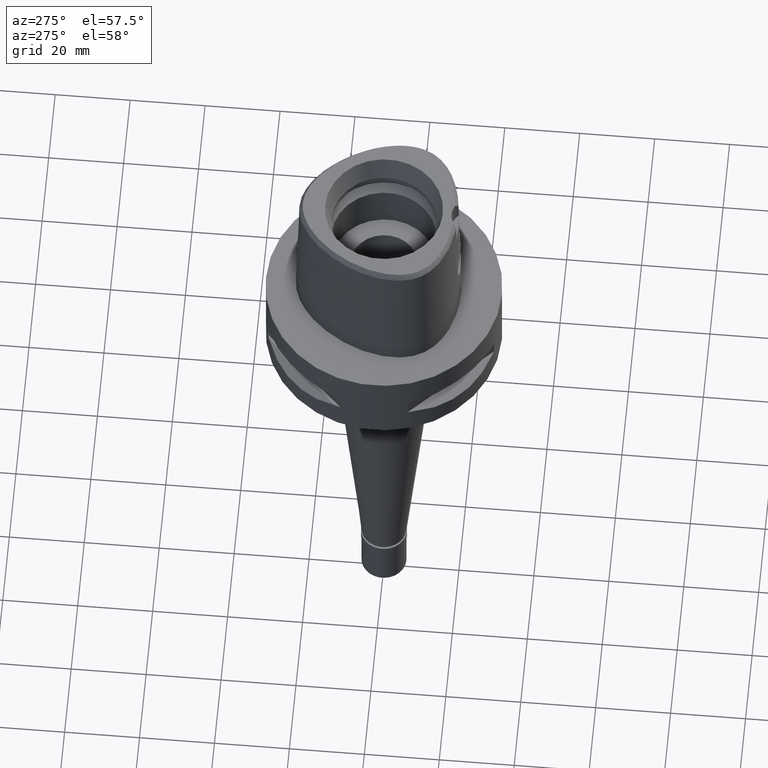
[diagram: clean part render]
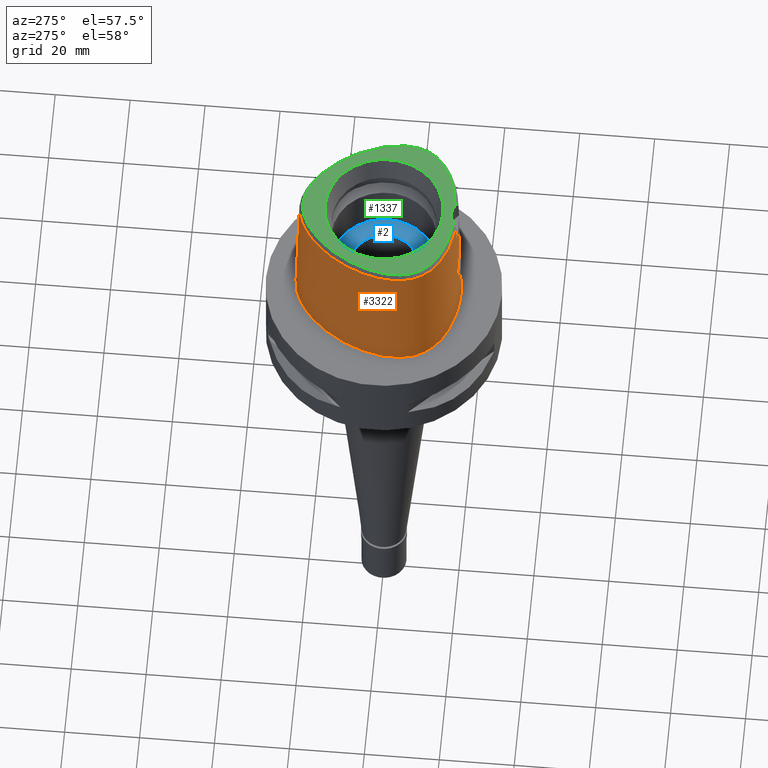
[diagram: same view with three faces highlighted in distinct colors, each labeled with its STEP entity id]
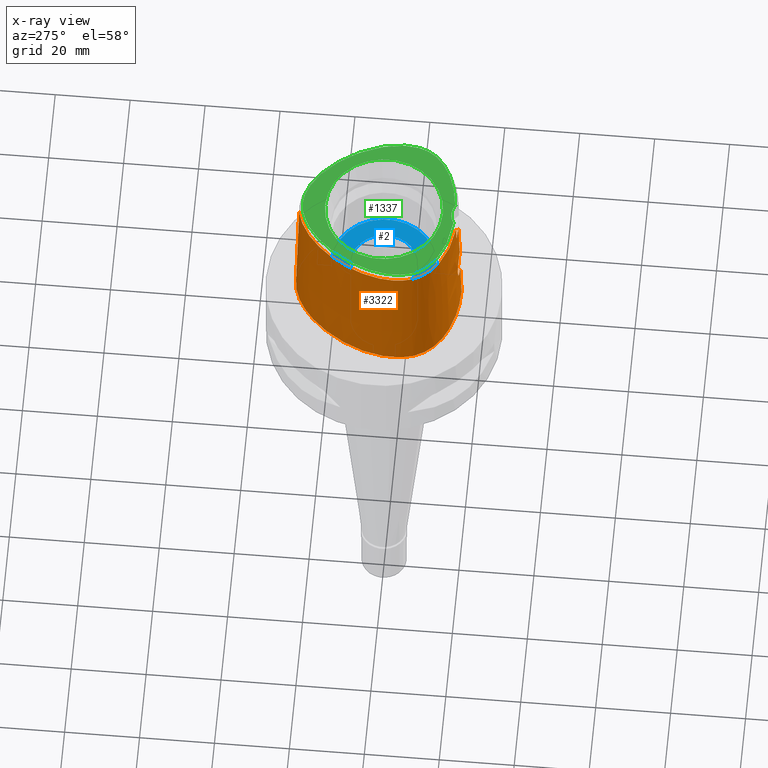
[diagram: x-ray of the same camera — body ghosted, the three highlighted faces saturated]
A machine part, auxiliary view with three faces highlighted in distinct colors.
The next image is the same camera in x-ray (body ghosted, the three faces saturated) — at least one of them is partly hidden behind the body in this view.
Their STEP definitions:

[orange] entity #3322 — the highlighted face is a freeform B-spline surface patch.
#42 = CARTESIAN_POINT ( 'NONE',  ( 0.4441907131123999930, 22.53710806195000060, 37.25231136629000162 ) ) ;
#82 = CARTESIAN_POINT ( 'NONE',  ( -1.559921522266380922, -20.34641501697879917, 11.76246137009818682 ) ) ;
#101 = CARTESIAN_POINT ( 'NONE',  ( -4.987110700638000438, 22.24795288858000220, 11.93047880357999979 ) ) ;
#109 = CARTESIAN_POINT ( 'NONE',  ( -3.388781880868394936, -20.17907268768857421, 13.28211842289943156 ) ) ;
#116 = CARTESIAN_POINT ( 'NONE',  ( -21.32871527669535894, -4.105831244393780999, 36.52186244847997898 ) ) ;
#126 = ORIENTED_EDGE ( 'NONE', *, *, #4096, .T. ) ;
#131 = CARTESIAN_POINT ( 'NONE',  ( -2.904838724130528238, -20.23782704190018933, 12.67778573503325568 ) ) ;
#148 = CARTESIAN_POINT ( 'NONE',  ( -14.52531267748999966, -16.95413756033000041, 11.93047880357999979 ) ) ;
#179 = CARTESIAN_POINT ( 'NONE',  ( -10.91263715786999988, -18.01320822577000058, 37.25231136629000162 ) ) ;
#200 = CARTESIAN_POINT ( 'NONE',  ( -21.13154905645999904, -6.714587102013999775, 37.25231136629000162 ) ) ;
#213 = CARTESIAN_POINT ( 'NONE',  ( -10.15538788052730901, 18.47129535094432384, 36.52186244847997898 ) ) ;
#225 = CARTESIAN_POINT ( 'NONE',  ( -21.31039850805000313, -4.105938495994998938, 37.25231136629000162 ) ) ;
#274 = EDGE_CURVE ( 'NONE', #2057, #2580, #715, .T. ) ;
#291 = CARTESIAN_POINT ( 'NONE',  ( -19.64947365556884762, -12.82525390401577603, 1.516090832520342047E-07 ) ) ;
#319 = CARTESIAN_POINT ( 'NONE',  ( -18.06826688197366337, 10.43171874809906008, 1.516090832520342047E-07 ) ) ;
#334 = CARTESIAN_POINT ( 'NONE',  ( -0.5985508228249999396, 23.20171286081999895, 11.93047880357999979 ) ) ;
#379 = CARTESIAN_POINT ( 'NONE',  ( -3.740129524197139066, -20.04822853724960652, 17.05370687142074360 ) ) ;
#397 = B_SPLINE_CURVE_WITH_KNOTS ( 'NONE', 3,
 ( #4078, #2663, #2205, #3805, #2272, #4881, #1507, #3712, #712, #4527, #1832, #4102, #406, #3780, #1552, #3390, #1904, #4129, #4457, #2995, #1140, #2234, #1064, #3740, #1533, #2644, #735, #3351, #3761, #4477, #4842, #4147, #2977, #1856, #4544, #4863, #2252, #1482, #3415, #1117, #1876, #379, #3047, #3144, #1234, #4638, #4198, #1285, #829, #1209, #3830, #1260, #2345, #3489, #3067, #2769, #3850, #3903, #3877, #1599, #2400, #855, #487, #2002, #2323, #4564, #1649, #1946, #510, #109, #2744, #431, #2025, #2049, #2717, #3536, #131, #4666, #807, #3513, #1626, #3171, #1969, #2369, #4274, #910, #4616, #4593, #1179, #886, #82, #3122, #4302, #2802, #2422 ),
 .UNSPECIFIED., .F., .F.,
 ( 4, 2, 2, 1, 1, 1, 2, 2, 2, 2, 1, 2, 2, 2, 1, 1, 1, 2, 2, 2, 2, 2, 1, 1, 2, 2, 2, 2, 1, 2, 2, 2, 2, 1, 1, 1, 2, 2, 2, 2, 1, 2, 2, 2, 1, 1, 1, 2, 2, 2, 2, 2, 1, 1, 2, 2, 4 ),
 ( 0.0000000000000000000, 0.06249999999999049372, 0.09374999999998573363, 0.1093749999999832495, 0.1171874999999820144, 0.1210937499999814176, 0.1230468749999810985, 0.1249999999999807931, 0.1562499999999729661, 0.1718749999999690525, 0.1796874999999668598, 0.1835937499999657496, 0.1874999999999646394, 0.2187499999999545086, 0.2343749999999494571, 0.2421874999999469036, 0.2460937499999455991, 0.2480468749999449884, 0.2499999999999443501, 0.3124999999999286127, 0.3437499999999203970, 0.3593749999999167333, 0.3671874999999144573, 0.3710937499999137357, 0.3730468749999138467, 0.3749999999999139577, 0.4374999999999172884, 0.4687499999999186207, 0.4843749999999192313, 0.4921874999999191203, 0.4999999999999190647, 0.5624999999999195088, 0.5937499999999198419, 0.6093749999999201750, 0.6171874999999203970, 0.6210937499999205080, 0.6230468749999207301, 0.6249999999999210631, 0.6562499999999255040, 0.6718749999999277245, 0.6796874999999289457, 0.6835937499999295008, 0.6874999999999301670, 0.7187499999999358291, 0.7343749999999387157, 0.7421874999999402700, 0.7460937499999409361, 0.7480468749999412692, 0.7499999999999416023, 0.8124999999999558131, 0.8437499999999626965, 0.8593749999999662492, 0.8671874999999679146, 0.8710937499999688027, 0.8730468749999691358, 0.8749999999999694689, 1.000000000000000000 ),
 .UNSPECIFIED. ) ;
#406 = CARTESIAN_POINT ( 'NONE',  ( -1.656252726911618511, -20.15609978928722867, 19.19765142507207756 ) ) ;
#413 = EDGE_CURVE ( 'NONE', #4728, #2580, #2086, .T. ) ;
#431 = CARTESIAN_POINT ( 'NONE',  ( -3.294464282140111777, -20.19175818983390158, 13.14063372506772254 ) ) ;
#443 = CARTESIAN_POINT ( 'NONE',  ( -7.420053181281000221, 21.05635752723999943, 11.93047880357999979 ) ) ;
#458 = B_SPLINE_CURVE_WITH_KNOTS ( 'NONE', 3,
 ( #1801, #2521, #1434, #3153 ),
 .UNSPECIFIED., .F., .F.,
 ( 4, 4 ),
 ( 0.0000000000000000000, 1.000000000000000000 ),
 .UNSPECIFIED. ) ;
#487 = CARTESIAN_POINT ( 'NONE',  ( -3.698122373996128864, -20.13343971460524529, 13.84482020457166307 ) ) ;
#501 = CARTESIAN_POINT ( 'NONE',  ( -10.34823249250999844, 18.70095512760000034, 24.59139508493999671 ) ) ;
#510 = CARTESIAN_POINT ( 'NONE',  ( -3.408875187839198073, -20.17633333107676563, 13.31312751174689701 ) ) ;
#526 = CARTESIAN_POINT ( 'NONE',  ( -21.99640701095000139, -0.2778990171088999706, -0.7304374777704000232 ) ) ;
#528 = CARTESIAN_POINT ( 'NONE',  ( -8.667931141994000226E-13, -20.38876923348000147, 11.44999999999999929 ) ) ;
#550 = CARTESIAN_POINT ( 'NONE',  ( -11.13012658649000031, -18.61140124550999886, 11.93047880357999979 ) ) ;
#578 = CARTESIAN_POINT ( 'NONE',  ( -20.09084481757999896, -11.59945466311000040, 11.93047880357999979 ) ) ;
#601 = CARTESIAN_POINT ( 'NONE',  ( -1.870070496460999765, -20.39691400875999960, 11.93047880357999979 ) ) ;
#613 = CARTESIAN_POINT ( 'NONE',  ( -2.376843896517139232, 22.39422508474153517, 36.52186244847997898 ) ) ;
#622 = CARTESIAN_POINT ( 'NONE',  ( -20.76670354435999855, 4.663413652274000398, -0.7304374777704000232 ) ) ;
#665 = CARTESIAN_POINT ( 'NONE',  ( -16.39211280191772602, -14.95758113319345384, 36.52186244847997898 ) ) ;
#670 = CARTESIAN_POINT ( 'NONE',  ( -14.67337964231609782, -17.21410155919817697, 1.516090832520342047E-07 ) ) ;
#712 = CARTESIAN_POINT ( 'NONE',  ( -1.492522727678615713, -20.16161937968068329, 19.26502569009137034 ) ) ;
#715 = B_SPLINE_CURVE_WITH_KNOTS ( 'NONE', 3,
 ( #1413, #2502, #1393, #2909 ),
 .UNSPECIFIED., .F., .F.,
 ( 4, 4 ),
 ( 0.0000000000000000000, 1.000000000000000000 ),
 .UNSPECIFIED. ) ;
#733 = CARTESIAN_POINT ( 'NONE',  ( -2.373090359931000037, 22.37624367419000393, 37.25231136629000162 ) ) ;
#735 = CARTESIAN_POINT ( 'NONE',  ( -2.823299992925739410, -20.10104229143708565, 18.40378355437400160 ) ) ;
#807 = CARTESIAN_POINT ( 'NONE',  ( -2.875757950342948011, -20.24102512592659764, 12.64823125461505171 ) ) ;
#820 = CARTESIAN_POINT ( 'NONE',  ( -4.750826273471000505, 21.65775819037000005, 37.25231136629000162 ) ) ;
#829 = CARTESIAN_POINT ( 'NONE',  ( -4.048193638326901933, -20.04945813671652033, 15.62509932609983032 ) ) ;
#855 = CARTESIAN_POINT ( 'NONE',  ( -3.744859968340089384, -20.12555785049467261, 13.95773689200745338 ) ) ;
#886 = CARTESIAN_POINT ( 'NONE',  ( -1.572984596545893954, -20.34569619827465203, 11.76794029727986590 ) ) ;
#901 = CARTESIAN_POINT ( 'NONE',  ( -21.68301110411999844, -0.3332743872212999836, 11.93047880357999979 ) ) ;
#910 = CARTESIAN_POINT ( 'NONE',  ( -1.758544761756498431, -20.33485355119083238, 11.85123508316437224 ) ) ;
#915 = VERTEX_POINT ( 'NONE', #4698 ) ;
#923 = CARTESIAN_POINT ( 'NONE',  ( -21.76083720955000089, -6.805026057181000176, 11.93047880357999979 ) ) ;
#954 = CARTESIAN_POINT ( 'NONE',  ( -6.232237614063000031, -19.68961196273999903, 24.59139508493999671 ) ) ;
#982 = CARTESIAN_POINT ( 'NONE',  ( -16.77374388608999922, -15.44292480215000118, 11.93047880357999979 ) ) ;
#998 = CARTESIAN_POINT ( 'NONE',  ( -10.74572890813996118, 19.17433593458577334, 1.516090832520342047E-07 ) ) ;
#1004 = CARTESIAN_POINT ( 'NONE',  ( -14.17879765569999861, 15.44741201222999827, 11.93047880357999979 ) ) ;
#1009 = B_SPLINE_CURVE_WITH_KNOTS ( 'NONE', 3,
 ( #3642, #3889, #2477, #1044, #3325, #665, #4817, #2012, #3616, #3693, #2550, #4719, #116, #3522, #2908, #3990, #2383, #213, #2929, #4406, #613, #1731, #4059 ),
 .UNSPECIFIED., .F., .F.,
 ( 4, 1, 1, 1, 1, 1, 1, 1, 1, 1, 1, 1, 1, 1, 1, 1, 1, 1, 1, 1, 4 ),
 ( 0.0000000000000000000, 0.03580973941714544334, 0.1234633994702087068, 0.1672902294965299408, 0.2111170595230616454, 0.2549438895495931834, 0.2768573045627013007, 0.2987707195759145562, 0.3206841345892329498, 0.3425975496024461497, 0.3864243796288726052, 0.4302512096552991161, 0.4740780396818307652, 0.5617316997346836205, 0.6493853597876417805, 0.7370390198404946913, 0.8246926798934527403, 0.8685195099198792512, 0.9123463399463582757, 0.9561731699728056588, 1.000000000000000000 ),
 .UNSPECIFIED. ) ;
#1044 = CARTESIAN_POINT ( 'NONE',  ( -10.91891098964648243, -18.03046406390211942, 36.52186244847997898 ) ) ;
#1047 = EDGE_CURVE ( 'NONE', #1725, #2770, #1705, .T. ) ;
#1064 = CARTESIAN_POINT ( 'NONE',  ( -2.467128207642502513, -20.12044499745017134, 18.71456023907540711 ) ) ;
#1068 = CARTESIAN_POINT ( 'NONE',  ( -18.56841064866222268, -14.16937988020231920, 1.516090832520342047E-07 ) ) ;
#1085 = CARTESIAN_POINT ( 'NONE',  ( -7.580410837599999674, 21.33037925853999894, -0.7304374777704000232 ) ) ;
#1117 = CARTESIAN_POINT ( 'NONE',  ( -3.732557508991586115, -20.04859144260170467, 17.07180291400313266 ) ) ;
#1140 = CARTESIAN_POINT ( 'NONE',  ( -2.236225399030620231, -20.13170464962382411, 18.87669531695366132 ) ) ;
#1179 = CARTESIAN_POINT ( 'NONE',  ( -1.592612062488384606, -20.34460894490693406, 11.77623291200199596 ) ) ;
#1199 = CARTESIAN_POINT ( 'NONE',  ( -0.5657070435999999036, 22.56734929399999956, 37.25231136629000162 ) ) ;
#1209 = CARTESIAN_POINT ( 'NONE',  ( -4.049663826248691478, -20.05088590019592942, 15.56119206773615282 ) ) ;
#1226 = CARTESIAN_POINT ( 'NONE',  ( -7.099337868642000338, 20.50831406465000128, 37.25231136629000162 ) ) ;
#1234 = CARTESIAN_POINT ( 'NONE',  ( -4.001055636223517453, -20.04208398454983708, 16.14154222849866827 ) ) ;
#1260 = CARTESIAN_POINT ( 'NONE',  ( -4.049848995936303098, -20.05861656951286776, 15.25314035239193444 ) ) ;
#1274 = CARTESIAN_POINT ( 'NONE',  ( -18.08416037879000271, 10.44089486959999924, -0.7304374777704000232 ) ) ;
#1285 = CARTESIAN_POINT ( 'NONE',  ( -4.044848056825707694, -20.04744994058535923, 15.72117637686656266 ) ) ;
#1300 = CARTESIAN_POINT ( 'NONE',  ( -18.89485299809999930, -12.27684389312000057, 37.25231136629000162 ) ) ;
#1318 = CARTESIAN_POINT ( 'NONE',  ( 4.293582668174999870E-11, 23.47499999999000053, 9.107529545341999115E-14 ) ) ;
#1326 = CARTESIAN_POINT ( 'NONE',  ( -19.54161197124000182, -11.28235493022000036, 37.25231136629000162 ) ) ;
#1336 = CARTESIAN_POINT ( 'NONE',  ( -8.667931141994000226E-13, -20.38876923348000147, 11.44999999999999929 ) ) ;
#1355 = CARTESIAN_POINT ( 'NONE',  ( -6.175998633194000220, -19.37631812177000157, 37.25231136629000162 ) ) ;
#1379 = CARTESIAN_POINT ( 'NONE',  ( -11.23887130079000052, -18.91049775537999977, -0.7304374777704000232 ) ) ;
#1393 = CARTESIAN_POINT ( 'NONE',  ( -2.503154198992862955, -19.81241979316056145, 31.80000012753026084 ) ) ;
#1395 = CARTESIAN_POINT ( 'NONE',  ( -21.55524825644420872, -8.996025389541506101, 1.516090832520342047E-07 ) ) ;
#1399 = CARTESIAN_POINT ( 'NONE',  ( 0.6657744371640000880, -19.73734283165999770, 37.25231136629000162 ) ) ;
#1413 = CARTESIAN_POINT ( 'NONE',  ( 2.041043315709000034E-08, -19.88004246002000031, 31.80000004972000127 ) ) ;
#1431 = VECTOR ( 'NONE', #3697, 999.9999999999998863 ) ;
#1434 = CARTESIAN_POINT ( 'NONE',  ( 6.841163893683022649E-09, -20.08420636276290594, 23.63333344114114354 ) ) ;
#1440 = CARTESIAN_POINT ( 'NONE',  ( -2.564517726178084267, 23.29328124627052787, 1.516090832520342047E-07 ) ) ;
#1481 = CARTESIAN_POINT ( 'NONE',  ( 0.6850314208139999250, 22.83959065495000118, 24.59139508493999671 ) ) ;
#1482 = CARTESIAN_POINT ( 'NONE',  ( -3.704467467887744725, -20.04996865237259129, 17.13733399075324471 ) ) ;
#1507 = CARTESIAN_POINT ( 'NONE',  ( -1.320565687264797061, -20.16697761691573731, 19.32976498246365082 ) ) ;
#1533 = CARTESIAN_POINT ( 'NONE',  ( -2.696415149887689822, -20.10825975497922258, 18.52316981036163668 ) ) ;
#1534 = CARTESIAN_POINT ( 'NONE',  ( -3.736722311398999796, -19.67781602443999844, 31.80000000000000071 ) ) ;
#1552 = CARTESIAN_POINT ( 'NONE',  ( -1.944872162910971092, -20.14473830020706657, 19.05307826099978286 ) ) ;
#1589 = CARTESIAN_POINT ( 'NONE',  ( -7.259695524960999791, 20.78233579595000080, 24.59139508493999671 ) ) ;
#1599 = CARTESIAN_POINT ( 'NONE',  ( -3.755562140675836158, -20.12374194796079152, 13.98397501488260986 ) ) ;
#1617 = CARTESIAN_POINT ( 'NONE',  ( -10.75753573489000026, 19.18839675363999930, -0.7304374777704000232 ) ) ;
#1626 = CARTESIAN_POINT ( 'NONE',  ( -2.647727988180406111, -20.26593689667708276, 12.42012271615854679 ) ) ;
#1639 = CARTESIAN_POINT ( 'NONE',  ( -21.26836750797999898, -8.910752273017001457, 11.93047880357999979 ) ) ;
#1649 = CARTESIAN_POINT ( 'NONE',  ( -3.466483550462866159, -20.16833646132894486, 13.40542637816833071 ) ) ;
#1668 = CARTESIAN_POINT ( 'NONE',  ( -14.68244496869000137, -17.23001772590000158, -0.7304374777704000232 ) ) ;
#1694 = CARTESIAN_POINT ( 'NONE',  ( -21.94536987623000002, -4.102220498717000119, 11.93047880357999979 ) ) ;
#1705 = LINE ( 'NONE', #1336, #2138 ) ;
#1719 = CARTESIAN_POINT ( 'NONE',  ( -19.40779776082000296, -12.64961932687999990, 11.93047880357999979 ) ) ;
#1725 = VERTEX_POINT ( 'NONE', #528 ) ;
#1731 = CARTESIAN_POINT ( 'NONE',  ( -0.7901461696975209392, 22.56201478746218214, 36.52186244847997898 ) ) ;
#1734 = ORIENTED_EDGE ( 'NONE', *, *, #3910, .T. ) ;
#1747 = CARTESIAN_POINT ( 'NONE',  ( -17.53318593686000071, 10.12278939025999946, 24.59139508493999671 ) ) ;
#1801 = CARTESIAN_POINT ( 'NONE',  ( 2.041043315709000034E-08, -19.88004246002000031, 31.80000004972000127 ) ) ;
#1802 = CARTESIAN_POINT ( 'NONE',  ( -3.637738201363999835, -19.56971413236999879, 36.52186244848000030 ) ) ;
#1804 = CARTESIAN_POINT ( 'NONE',  ( -22.24453907474380898, -4.100468750021740938, 1.516090832520342047E-07 ) ) ;
#1832 = CARTESIAN_POINT ( 'NONE',  ( -1.533377486144819501, -20.16026360294686270, 19.24851053761152642 ) ) ;
#1835 = ORIENTED_EDGE ( 'NONE', *, *, #1047, .F. ) ;
#1838 = CARTESIAN_POINT ( 'NONE',  ( -14.40795638667350254, 15.64093749753958029, 1.516090832520342047E-07 ) ) ;
#1856 = CARTESIAN_POINT ( 'NONE',  ( -3.538328569005032787, -20.05892019842396934, 17.47427695038973283 ) ) ;
#1861 = CARTESIAN_POINT ( 'NONE',  ( -1.759307681796000049E-11, 22.56201468012000078, 36.52186680743999858 ) ) ;
#1876 = CARTESIAN_POINT ( 'NONE',  ( -3.738021026995801410, -20.04832921641905585, 17.05876513950481765 ) ) ;
#1904 = CARTESIAN_POINT ( 'NONE',  ( -2.095753548395244525, -20.13818364214451506, 18.96577014707053266 ) ) ;
#1937 = CARTESIAN_POINT ( 'NONE',  ( -2.438150641533999963, 22.68791657577000009, 24.59139508493999671 ) ) ;
#1946 = CARTESIAN_POINT ( 'NONE',  ( -3.438474045104767285, -20.17226853617655991, 13.35950353182825801 ) ) ;
#1969 = CARTESIAN_POINT ( 'NONE',  ( -2.086814383482011870, -20.31269213283806607, 12.02647857459893643 ) ) ;
#1993 = CARTESIAN_POINT ( 'NONE',  ( -2.503210923137999533, 22.99958947736000070, 11.93047880357999979 ) ) ;
#2002 = CARTESIAN_POINT ( 'NONE',  ( -3.646271025734550086, -20.14180172669103186, 13.73229968882544050 ) ) ;
#2009 = EDGE_CURVE ( 'NONE', #4728, #915, #1009, .T. ) ;
#2012 = CARTESIAN_POINT ( 'NONE',  ( -18.90964971338107148, -12.28759719904689085, 36.52186244847997898 ) ) ;
#2017 = CARTESIAN_POINT ( 'NONE',  ( 0.7234356448024998887, 23.47140592164999973, -0.7304374777704000232 ) ) ;
#2025 = CARTESIAN_POINT ( 'NONE',  ( -3.215358272889149216, -20.20174660046221149, 13.03391498473980015 ) ) ;
#2040 = CARTESIAN_POINT ( 'NONE',  ( -20.65947774839000317, -8.729764431562999860, 37.25231136629000162 ) ) ;
#2049 = CARTESIAN_POINT ( 'NONE',  ( -3.089131642922218646, -20.21685897407314769, 12.88004451868384415 ) ) ;
#2057 = VERTEX_POINT ( 'NONE', #3280 ) ;
#2066 = EDGE_CURVE ( 'NONE', #2057, #3517, #458, .T. ) ;
#2070 = CARTESIAN_POINT ( 'NONE',  ( -22.26285556032000201, -4.100361500077999821, -0.7304374777704000232 ) ) ;
#2086 = B_SPLINE_CURVE_WITH_KNOTS ( 'NONE', 3,
 ( #1802, #2206, #3373, #1534 ),
 .UNSPECIFIED., .F., .F.,
 ( 4, 4 ),
 ( 0.0000000000000000000, 1.000000000000000000 ),
 .UNSPECIFIED. ) ;
#2098 = CARTESIAN_POINT ( 'NONE',  ( -13.69241993480999930, 15.03666403818000141, 37.25231136629000162 ) ) ;
#2120 = CARTESIAN_POINT ( 'NONE',  ( -1.853278700958999936, -20.08023942343999835, 24.59139508493999671 ) ) ;
#2138 = VECTOR ( 'NONE', #3202, 1000.000000000000114 ) ;
#2146 = CARTESIAN_POINT ( 'NONE',  ( -18.58171406219999966, -14.18198046202999940, -0.7304374777704000232 ) ) ;
#2205 = CARTESIAN_POINT ( 'NONE',  ( -0.5036866637177189743, -20.18406862059044471, 19.52728785670061384 ) ) ;
#2206 = CARTESIAN_POINT ( 'NONE',  ( -3.671249123513567802, -19.60525173594972514, 34.94790829898666829 ) ) ;
#2231 = EDGE_CURVE ( 'NONE', #3517, #1725, #397, .T. ) ;
#2234 = CARTESIAN_POINT ( 'NONE',  ( -2.360389010897319562, -20.12578017861218171, 18.79373387523179417 ) ) ;
#2251 = CARTESIAN_POINT ( 'NONE',  ( -5.105252914221000360, 22.54305023769000016, -0.7304374777704000232 ) ) ;
#2252 = CARTESIAN_POINT ( 'NONE',  ( -3.686560471762271085, -20.05088322548380830, 17.17709135336051318 ) ) ;
#2272 = CARTESIAN_POINT ( 'NONE',  ( -1.025211814374638264, -20.17465818941732536, 19.42048404905608905 ) ) ;
#2323 = CARTESIAN_POINT ( 'NONE',  ( -3.553766165189729875, -20.15576042538050316, 13.55638603653859242 ) ) ;
#2345 = CARTESIAN_POINT ( 'NONE',  ( -4.027530768687938689, -20.06783249595402552, 14.99855479662145896 ) ) ;
#2369 = CARTESIAN_POINT ( 'NONE',  ( -1.975954942318344232, -20.32065689222465465, 11.96260358362793674 ) ) ;
#2383 = CARTESIAN_POINT ( 'NONE',  ( -13.70645028111287189, 15.04851272300174614, 36.52186244847997898 ) ) ;
#2400 = CARTESIAN_POINT ( 'NONE',  ( -3.748882549355226690, -20.12487725615831025, 13.96753193210504129 ) ) ;
#2414 = CARTESIAN_POINT ( 'NONE',  ( -21.36961519729999992, -0.3886497573336999412, 24.59139508493999671 ) ) ;
#2422 = CARTESIAN_POINT ( 'NONE',  ( -8.667931141994000226E-13, -20.38876923348000147, 11.44999999999999929 ) ) ;
#2438 = CARTESIAN_POINT ( 'NONE',  ( -16.97022730797000278, -15.69280482715999803, -0.7304374777704000232 ) ) ;
#2442 = EDGE_LOOP ( 'NONE', ( #1835, #2486, #4891, #3654, #4408, #2762, #126, #1734 ) ) ;
#2464 = CARTESIAN_POINT ( 'NONE',  ( -20.65879056728000052, -10.48283623212999949, 11.93047880357999979 ) ) ;
#2477 = CARTESIAN_POINT ( 'NONE',  ( -7.300578999875400932, -19.07170748891758549, 36.52186244847997898 ) ) ;
#2486 = ORIENTED_EDGE ( 'NONE', *, *, #2231, .F. ) ;
#2488 = CARTESIAN_POINT ( 'NONE',  ( -20.36913788052000029, -10.35391849632000039, 24.59139508493999671 ) ) ;
#2502 = CARTESIAN_POINT ( 'NONE',  ( -1.251533273949767100, -19.88005341379726332, 31.80000012753026084 ) ) ;
#2509 = CARTESIAN_POINT ( 'NONE',  ( -20.94844325404000074, -10.61175396793999859, -0.7304374777704000232 ) ) ;
#2521 = CARTESIAN_POINT ( 'NONE',  ( 6.821213392575076802E-09, -19.98212988583494010, 27.71666688228195241 ) ) ;
#2528 = CARTESIAN_POINT ( 'NONE',  ( -11.23259756597050618, -18.89324218392132337, 1.516090832520342047E-07 ) ) ;
#2550 = CARTESIAN_POINT ( 'NONE',  ( -20.67704215115839617, -8.734985316449570547, 36.52186244847997898 ) ) ;
#2580 = VERTEX_POINT ( 'NONE', #4313 ) ;
#2601 = CARTESIAN_POINT ( 'NONE',  ( -20.74942740520685547, 4.657187498707317630, 1.516090832520342047E-07 ) ) ;
#2608 = CARTESIAN_POINT ( 'NONE',  ( 0.4479792515600000136, -20.05810169771000062, 24.59139508493999671 ) ) ;
#2622 = CARTESIAN_POINT ( 'NONE',  ( 0.6658293088197000387, 22.52368302160000013, 37.25231136629000162 ) ) ;
#2644 = CARTESIAN_POINT ( 'NONE',  ( -2.781497320423301112, -20.10345565782014887, 18.44409576489579905 ) ) ;
#2651 = B_SPLINE_SURFACE_WITH_KNOTS ( 'NONE', 3, 3, ( 
 ( #2017, #4214, #1481, #2622 ),
 ( #3841, #3739, #4128, #42 ),
 ( #3894, #334, #4609, #1199 ),
 ( #3447, #1993, #1937, #733 ),
 ( #2251, #101, #2709, #820 ),
 ( #1085, #443, #1589, #1226 ),
 ( #1617, #2734, #501, #4653 ),
 ( #4292, #1004, #2870, #2098 ),
 ( #1274, #3190, #1747, #4020 ),
 ( #622, #2791, #2818, #2897 ),
 ( #526, #901, #2414, #3604 ),
 ( #2070, #1694, #4393, #225 ),
 ( #4316, #923, #4683, #200 ),
 ( #3916, #1639, #3627, #2040 ),
 ( #2509, #2464, #2488, #4761 ),
 ( #3974, #578, #3657, #1326 ),
 ( #3269, #1719, #4370, #1300 ),
 ( #2146, #3159, #3241, #4708 ),
 ( #2438, #982, #4730, #3549 ),
 ( #1668, #148, #4340, #3939 ),
 ( #1379, #550, #3581, #179 ),
 ( #3215, #2840, #954, #1355 ),
 ( #3998, #601, #2120, #3312 ),
 ( #4782, #4068, #2608, #4467 ),
 ( #2917, #4089, #3291, #1399 ) ),
 .UNSPECIFIED., .F., .F., .F.,
 ( 4, 1, 1, 1, 1, 1, 1, 1, 1, 1, 1, 1, 1, 1, 1, 1, 1, 1, 1, 1, 1, 1, 4 ),
 ( 4, 4 ),
 ( -0.01173777939044999899, 0.0000000000000000000, 0.04166666666733000179, 0.08333333333395000209, 0.1250000000005999923, 0.1666666666672000086, 0.2500000000004999889, 0.3333333333337000215, 0.4166666666670000296, 0.5000000000001999512, 0.5416666666668999985, 0.5833333333335000148, 0.6250000000001000311, 0.6458333333333999837, 0.6666666666667999674, 0.6875000000001000311, 0.7083333333333000637, 0.7500000000000000000, 0.7916666666667000474, 0.8333333333332000326, 0.9166666666666000163, 1.000000000000000000, 1.008985696609000060 ),
 ( 6.707173028780000584E-09, 0.9999996579341000613 ),
 .UNSPECIFIED. ) ;
#2663 = CARTESIAN_POINT ( 'NONE',  ( -0.2473412322741261882, -20.18628283969000492, 19.55000000000000426 ) ) ;
#2709 = CARTESIAN_POINT ( 'NONE',  ( -4.868968487054000427, 21.95285553947999801, 24.59139508493999671 ) ) ;
#2717 = CARTESIAN_POINT ( 'NONE',  ( -3.024127618931548245, -20.22444760029573985, 12.80466032897816042 ) ) ;
#2734 = CARTESIAN_POINT ( 'NONE',  ( -10.55288411370000112, 18.94467594061999804, 11.93047880357999979 ) ) ;
#2744 = CARTESIAN_POINT ( 'NONE',  ( -3.377353639917552997, -20.18061854612841444, 13.26476903757174952 ) ) ;
#2758 = FACE_OUTER_BOUND ( 'NONE', #2442, .T. ) ;
#2762 = ORIENTED_EDGE ( 'NONE', *, *, #2009, .T. ) ;
#2769 = CARTESIAN_POINT ( 'NONE',  ( -3.862607746706451906, -20.10460055501078003, 14.28038032247243905 ) ) ;
#2770 = VERTEX_POINT ( 'NONE', #3571 ) ;
#2791 = CARTESIAN_POINT ( 'NONE',  ( -20.46725052786000276, 4.555493679518000327, 11.93047880357999979 ) ) ;
#2802 = CARTESIAN_POINT ( 'NONE',  ( -0.5047993657332932038, -20.38876923348000503, 11.45000000000000284 ) ) ;
#2816 = VERTEX_POINT ( 'NONE', #1318 ) ;
#2818 = CARTESIAN_POINT ( 'NONE',  ( -20.16779751134999898, 4.447573706760999279, 24.59139508493999671 ) ) ;
#2840 = CARTESIAN_POINT ( 'NONE',  ( -6.288476594931999841, -20.00290580371000360, 11.93047880357999979 ) ) ;
#2870 = CARTESIAN_POINT ( 'NONE',  ( -13.93560879526000029, 15.24203802521000028, 24.59139508493999671 ) ) ;
#2897 = CARTESIAN_POINT ( 'NONE',  ( -19.86834449483999876, 4.339653734004000896, 37.25231136629000162 ) ) ;
#2908 = CARTESIAN_POINT ( 'NONE',  ( -19.88562090098501756, 4.345879983791825829, 36.52186244847997898 ) ) ;
#2909 = CARTESIAN_POINT ( 'NONE',  ( -3.736722311398999796, -19.67781602443999844, 31.80000000000000071 ) ) ;
#2917 = CARTESIAN_POINT ( 'NONE',  ( 0.6840430852616000701, -20.68668154483000166, -0.7304374777704000232 ) ) ;
#2929 = CARTESIAN_POINT ( 'NONE',  ( -7.108589416785739523, 20.52412325828468553, 36.52186244847997898 ) ) ;
#2958 = B_SPLINE_CURVE_WITH_KNOTS ( 'NONE', 3,
 ( #2963, #4064, #1440, #4462, #4847, #998, #1838, #319, #2601, #3649, #1804, #3331, #1395, #3356, #4800, #291, #1068, #3745, #670, #2528, #4015, #2999, #4822 ),
 .UNSPECIFIED., .F., .F.,
 ( 4, 1, 1, 1, 1, 1, 1, 1, 1, 1, 1, 1, 1, 1, 1, 1, 1, 1, 1, 1, 4 ),
 ( 0.0000000000000000000, 0.04166666666733000179, 0.08333333333395000209, 0.1250000000005999923, 0.1666666666672000086, 0.2500000000004999889, 0.3333333333337000215, 0.4166666666670000296, 0.5000000000001999512, 0.5416666666668999985, 0.5833333333335000148, 0.6250000000001000311, 0.6458333333333999837, 0.6666666666667999674, 0.6875000000001000311, 0.7083333333333000637, 0.7500000000000000000, 0.7916666666667000474, 0.8333333333332000326, 0.9166666666666000163, 1.000000000000000000 ),
 .UNSPECIFIED. ) ;
#2963 = CARTESIAN_POINT ( 'NONE',  ( 4.293582668174999870E-11, 23.47499999999000053, 9.107529545341999115E-14 ) ) ;
#2977 = CARTESIAN_POINT ( 'NONE',  ( -3.474550157059038469, -20.06258684786126523, 17.58509941784945241 ) ) ;
#2995 = CARTESIAN_POINT ( 'NONE',  ( -2.218923952794646937, -20.13252298611812208, 18.88809933007006592 ) ) ;
#2999 = CARTESIAN_POINT ( 'NONE',  ( -2.113823672838555545, -20.67499999620940088, 1.516090832520342047E-07 ) ) ;
#3047 = CARTESIAN_POINT ( 'NONE',  ( -3.848403410416709303, -20.04310851184391851, 16.79149714036300267 ) ) ;
#3055 = CARTESIAN_POINT ( 'NONE',  ( 0.0000000000000000000, -20.18628283968999781, 19.55000000000000071 ) ) ;
#3067 = CARTESIAN_POINT ( 'NONE',  ( -3.921269265891369482, -20.09311890564247705, 14.47775228281387072 ) ) ;
#3122 = CARTESIAN_POINT ( 'NONE',  ( -1.554881956813682908, -20.34669101429740934, 11.76035872672039773 ) ) ;
#3144 = CARTESIAN_POINT ( 'NONE',  ( -3.925407708650914707, -20.04099055260014950, 16.53138977175270341 ) ) ;
#3153 = CARTESIAN_POINT ( 'NONE',  ( 0.0000000000000000000, -20.18628283968999781, 19.55000000000000071 ) ) ;
#3159 = CARTESIAN_POINT ( 'NONE',  ( -18.35112160873999798, -13.96357042235000101, 11.93047880357999979 ) ) ;
#3171 = CARTESIAN_POINT ( 'NONE',  ( -2.421503357513920651, -20.28648737493561782, 12.24279215510286178 ) ) ;
#3190 = CARTESIAN_POINT ( 'NONE',  ( -17.80867315781999949, 10.28184212993000024, 11.93047880357999979 ) ) ;
#3202 = DIRECTION ( 'NONE',  ( -5.349584865116839678E-13, -0.02499051295389925070, -0.9996876883618708298 ) ) ;
#3215 = CARTESIAN_POINT ( 'NONE',  ( -6.344715575800000451, -20.31619964468000106, -0.7304374777704000232 ) ) ;
#3241 = CARTESIAN_POINT ( 'NONE',  ( -18.12052915529000074, -13.74516038266999907, 24.59139508493999671 ) ) ;
#3269 = CARTESIAN_POINT ( 'NONE',  ( -19.66427014217999769, -12.83600704375999868, -0.7304374777704000232 ) ) ;
#3280 = CARTESIAN_POINT ( 'NONE',  ( 2.041043315709000034E-08, -19.88004246002000031, 31.80000004972000127 ) ) ;
#3291 = CARTESIAN_POINT ( 'NONE',  ( 0.6718639865299000924, -20.05378906938000227, 24.59139508493999671 ) ) ;
#3312 = CARTESIAN_POINT ( 'NONE',  ( -1.836486905457000107, -19.76356483813000153, 37.25231136629000162 ) ) ;
#3322 = ADVANCED_FACE ( 'NONE', ( #2758 ), #2651, .T. ) ;
#3325 = CARTESIAN_POINT ( 'NONE',  ( -14.22011356156252759, -16.41829364186565599, 36.52186244847997898 ) ) ;
#3331 = CARTESIAN_POINT ( 'NONE',  ( -22.05732873945438044, -6.847636718208110373, 1.516090832520342047E-07 ) ) ;
#3351 = CARTESIAN_POINT ( 'NONE',  ( -2.841055161940949869, -20.10000556631502278, 18.38634273632050764 ) ) ;
#3356 = CARTESIAN_POINT ( 'NONE',  ( -20.93173251864306650, -10.60431640471491299, 1.516090832520342047E-07 ) ) ;
#3373 = CARTESIAN_POINT ( 'NONE',  ( -3.704239276368590961, -19.64128040965313460, 33.37395414949332917 ) ) ;
#3390 = CARTESIAN_POINT ( 'NONE',  ( -2.004675599368612282, -20.14220382833430278, 19.01976680094607630 ) ) ;
#3415 = CARTESIAN_POINT ( 'NONE',  ( -3.724287987555729984, -20.04899117660383112, 17.09139312268648325 ) ) ;
#3447 = CARTESIAN_POINT ( 'NONE',  ( -2.568271204742000435, 23.31126237894000042, -0.7304374777704000232 ) ) ;
#3489 = CARTESIAN_POINT ( 'NONE',  ( -3.952964639651607381, -20.08622609015318616, 14.60890045233773904 ) ) ;
#3513 = CARTESIAN_POINT ( 'NONE',  ( -2.870809693609941871, -20.24156730632680379, 12.64324605246962285 ) ) ;
#3517 = VERTEX_POINT ( 'NONE', #3055 ) ;
#3522 = CARTESIAN_POINT ( 'NONE',  ( -21.07430010673186871, -0.4408303445194081682, 36.52186244847997898 ) ) ;
#3536 = CARTESIAN_POINT ( 'NONE',  ( -2.945118222698877020, -20.23335776653538076, 12.71958560101227675 ) ) ;
#3549 = CARTESIAN_POINT ( 'NONE',  ( -16.38077704234999743, -14.94316475211999951, 37.25231136629000162 ) ) ;
#3571 = CARTESIAN_POINT ( 'NONE',  ( -6.993981376961000509E-12, -20.67499999999999716, 9.396187531743999603E-14 ) ) ;
#3581 = CARTESIAN_POINT ( 'NONE',  ( -11.02138187217999921, -18.31230473563999794, 24.59139508493999671 ) ) ;
#3604 = CARTESIAN_POINT ( 'NONE',  ( -21.05621929047000052, -0.4440251274461000097, 37.25231136629000162 ) ) ;
#3616 = CARTESIAN_POINT ( 'NONE',  ( -19.55745547455838818, -11.29150218116089377, 36.52186244847997898 ) ) ;
#3627 = CARTESIAN_POINT ( 'NONE',  ( -20.96392262818999797, -8.820258352290000659, 24.59139508493999671 ) ) ;
#3642 = CARTESIAN_POINT ( 'NONE',  ( -3.637738201363999835, -19.56971413236999879, 36.52186244848000030 ) ) ;
#3649 = CARTESIAN_POINT ( 'NONE',  ( -21.97832647411087947, -0.2810937506630972194, 1.516090832520342047E-07 ) ) ;
#3654 = ORIENTED_EDGE ( 'NONE', *, *, #274, .T. ) ;
#3657 = CARTESIAN_POINT ( 'NONE',  ( -19.81622839441000039, -11.44090479666999904, 24.59139508493999671 ) ) ;
#3693 = CARTESIAN_POINT ( 'NONE',  ( -20.09619618741029612, -10.23243843868713832, 36.52186244847997898 ) ) ;
#3697 = DIRECTION ( 'NONE',  ( 1.656815626040964494E-12, 0.02499051290962944413, -0.9996876883629776112 ) ) ;
#3712 = CARTESIAN_POINT ( 'NONE',  ( -1.435263460282424575, -20.16346600381253040, 19.28743623777679161 ) ) ;
#3739 = CARTESIAN_POINT ( 'NONE',  ( 0.4696382080600999820, 23.16972813871999648, 11.93047880357999979 ) ) ;
#3740 = CARTESIAN_POINT ( 'NONE',  ( -2.621021505576066168, -20.11233874864635851, 18.58822781675918989 ) ) ;
#3745 = CARTESIAN_POINT ( 'NONE',  ( -16.95889172358566199, -15.67838866887873550, 1.516090832520342047E-07 ) ) ;
#3761 = CARTESIAN_POINT ( 'NONE',  ( -2.852856104014803496, -20.09931387729061214, 18.37467926462882417 ) ) ;
#3780 = CARTESIAN_POINT ( 'NONE',  ( -1.768917262151371128, -20.15190475906414491, 19.14568281054234333 ) ) ;
#3805 = CARTESIAN_POINT ( 'NONE',  ( -0.8941136475697671893, -20.17742596329177118, 19.45229334933698340 ) ) ;
#3830 = CARTESIAN_POINT ( 'NONE',  ( -4.050018014422872348, -20.05167593066963860, 15.52805627100037533 ) ) ;
#3841 = CARTESIAN_POINT ( 'NONE',  ( 0.4823619555338999887, 23.48603817709999930, -0.7304374777704000232 ) ) ;
#3850 = CARTESIAN_POINT ( 'NONE',  ( -3.830499027171943460, -20.11062698622851741, 14.18153512548177808 ) ) ;
#3867 = CARTESIAN_POINT ( 'NONE',  ( -3.637738201363999835, -19.56971413236999879, 36.52186244848000030 ) ) ;
#3877 = CARTESIAN_POINT ( 'NONE',  ( -3.765489374954457791, -20.12204791086868738, 14.00864527313871832 ) ) ;
#3889 = CARTESIAN_POINT ( 'NONE',  ( -4.467522189393990928, -19.48130287050517850, 36.52186244847997898 ) ) ;
#3894 = CARTESIAN_POINT ( 'NONE',  ( -0.6149727124373999265, 23.51889464423000220, -0.7304374777704000232 ) ) ;
#3903 = CARTESIAN_POINT ( 'NONE',  ( -3.788010122585403927, -20.11815763408299063, 14.06624340822980557 ) ) ;
#3910 = EDGE_CURVE ( 'NONE', #2816, #2770, #2958, .T. ) ;
#3916 = CARTESIAN_POINT ( 'NONE',  ( -21.57281238776999999, -9.001246193743998703, -0.7304374777704000232 ) ) ;
#3939 = CARTESIAN_POINT ( 'NONE',  ( -14.21104809508999800, -16.40237722918999808, 37.25231136629000162 ) ) ;
#3974 = CARTESIAN_POINT ( 'NONE',  ( -20.36546124075000108, -11.75800452954999997, -0.7304374777704000232 ) ) ;
#3990 = CARTESIAN_POINT ( 'NONE',  ( -17.27359245832981216, 9.972912913898998255, 36.52186244847997898 ) ) ;
#3998 = CARTESIAN_POINT ( 'NONE',  ( -1.886862291963000038, -20.71358859406999997, -0.7304374777704000232 ) ) ;
#4015 = CARTESIAN_POINT ( 'NONE',  ( -6.341471018537943038, -20.29812499625711197, 1.516090832520342047E-07 ) ) ;
#4020 = CARTESIAN_POINT ( 'NONE',  ( -17.25769871589000104, 9.963736650587000199, 37.25231136629000162 ) ) ;
#4059 = CARTESIAN_POINT ( 'NONE',  ( -1.759307681796000049E-11, 22.56201468012000078, 36.52186680743999858 ) ) ;
#4064 = CARTESIAN_POINT ( 'NONE',  ( -0.8548392420360610977, 23.47499999621386735, 1.516090832520342047E-07 ) ) ;
#4068 = CARTESIAN_POINT ( 'NONE',  ( 0.4520368092537000448, -20.37458468872999617, 11.93047880357999979 ) ) ;
#4078 = CARTESIAN_POINT ( 'NONE',  ( 0.0000000000000000000, -20.18628283968999781, 19.55000000000000071 ) ) ;
#4089 = CARTESIAN_POINT ( 'NONE',  ( 0.6779535358957000657, -20.37023530710000330, 11.93047880357999979 ) ) ;
#4096 = EDGE_CURVE ( 'NONE', #915, #2816, #4866, .T. ) ;
#4102 = CARTESIAN_POINT ( 'NONE',  ( -1.543048130370305415, -20.15993798682082883, 19.24453660914027253 ) ) ;
#4128 = CARTESIAN_POINT ( 'NONE',  ( 0.4569144605861999997, 22.85341810032999987, 24.59139508493999671 ) ) ;
#4129 = CARTESIAN_POINT ( 'NONE',  ( -2.141634863645063724, -20.13611892945446158, 18.93776449057540390 ) ) ;
#4147 = CARTESIAN_POINT ( 'NONE',  ( -3.258446753580863664, -20.07522384658303594, 17.91983021284940847 ) ) ;
#4198 = CARTESIAN_POINT ( 'NONE',  ( -4.038031914724459881, -20.04584209171813924, 15.81781984748030112 ) ) ;
#4214 = CARTESIAN_POINT ( 'NONE',  ( 0.7042335328083000334, 23.15549828829999868, 11.93047880357999979 ) ) ;
#4274 = CARTESIAN_POINT ( 'NONE',  ( -1.812541018810720050, -20.33144879143320338, 11.87771303037885140 ) ) ;
#4292 = CARTESIAN_POINT ( 'NONE',  ( -14.42198651615000138, 15.65278599925000158, -0.7304374777704000232 ) ) ;
#4302 = CARTESIAN_POINT ( 'NONE',  ( -1.035503054985373428, -20.37488775911049288, 11.54570873334493619 ) ) ;
#4313 = CARTESIAN_POINT ( 'NONE',  ( -3.736722311398999796, -19.67781602443999844, 31.80000000000000071 ) ) ;
#4316 = CARTESIAN_POINT ( 'NONE',  ( -22.07548128610000049, -6.850245534764000332, -0.7304374777704000232 ) ) ;
#4340 = CARTESIAN_POINT ( 'NONE',  ( -14.36818038628999972, -16.67825739475999924, 24.59139508493999671 ) ) ;
#4370 = CARTESIAN_POINT ( 'NONE',  ( -19.15132537945999758, -12.46323160999999935, 24.59139508493999671 ) ) ;
#4393 = CARTESIAN_POINT ( 'NONE',  ( -21.62788419214000157, -4.104079497356000417, 24.59139508493999671 ) ) ;
#4406 = CARTESIAN_POINT ( 'NONE',  ( -4.757642277158389277, 21.67478330407550402, 36.52186244847997898 ) ) ;
#4408 = ORIENTED_EDGE ( 'NONE', *, *, #413, .F. ) ;
#4457 = CARTESIAN_POINT ( 'NONE',  ( -2.187955111035806421, -20.13397228737170153, 18.90818030784749126 ) ) ;
#4462 = CARTESIAN_POINT ( 'NONE',  ( -5.098437015868814370, 22.52602538709230373, 1.516090832520342047E-07 ) ) ;
#4467 = CARTESIAN_POINT ( 'NONE',  ( 0.4439216938662000067, -19.74161870669000152, 37.25231136629000162 ) ) ;
#4477 = CARTESIAN_POINT ( 'NONE',  ( -2.857836109595106144, -20.09902107152586836, 18.36973246308379970 ) ) ;
#4527 = CARTESIAN_POINT ( 'NONE',  ( -1.517038990522738606, -20.16080850842840277, 19.25515252244622388 ) ) ;
#4544 = CARTESIAN_POINT ( 'NONE',  ( -3.623054736479527804, -20.05423874947299367, 17.31100359227766816 ) ) ;
#4564 = CARTESIAN_POINT ( 'NONE',  ( -3.520475119310990664, -20.16064927170379306, 13.49656734929198088 ) ) ;
#4593 = CARTESIAN_POINT ( 'NONE',  ( -1.638635025880067264, -20.34200884320178915, 11.79610711467187478 ) ) ;
#4609 = CARTESIAN_POINT ( 'NONE',  ( -0.5821289332125000326, 22.88453107740999926, 24.59139508493999671 ) ) ;
#4616 = CARTESIAN_POINT ( 'NONE',  ( -1.678454493306187345, -20.33967188085944855, 11.81405957885125524 ) ) ;
#4638 = CARTESIAN_POINT ( 'NONE',  ( -4.019649019921880395, -20.04316019033561602, 16.01163126935694336 ) ) ;
#4653 = CARTESIAN_POINT ( 'NONE',  ( -10.14358087131000019, 18.45723431458999997, 37.25231136629000162 ) ) ;
#4666 = CARTESIAN_POINT ( 'NONE',  ( -2.887412005236639434, -20.23974548682332397, 12.66003157092715981 ) ) ;
#4683 = CARTESIAN_POINT ( 'NONE',  ( -21.44619313299999774, -6.759806579596999931, 24.59139508493999671 ) ) ;
#4698 = CARTESIAN_POINT ( 'NONE',  ( -1.759307681796000049E-11, 22.56201468012000078, 36.52186680743999858 ) ) ;
#4708 = CARTESIAN_POINT ( 'NONE',  ( -17.88993670183000262, -13.52675034299000068, 37.25231136629000162 ) ) ;
#4719 = CARTESIAN_POINT ( 'NONE',  ( -21.14970188364065606, -6.717195958887423934, 36.52186244847997898 ) ) ;
#4728 = VERTEX_POINT ( 'NONE', #3867 ) ;
#4730 = CARTESIAN_POINT ( 'NONE',  ( -16.57726046422000010, -15.19304477712999990, 24.59139508493999671 ) ) ;
#4761 = CARTESIAN_POINT ( 'NONE',  ( -20.07948519376000007, -10.22500076052000040, 37.25231136629000162 ) ) ;
#4782 = CARTESIAN_POINT ( 'NONE',  ( 0.4560943669473999651, -20.69106767974999883, -0.7304374777704000232 ) ) ;
#4800 = CARTESIAN_POINT ( 'NONE',  ( -20.34961798227869778, -11.74885741997219490, 1.516090832520342047E-07 ) ) ;
#4817 = CARTESIAN_POINT ( 'NONE',  ( -17.90324032096323847, -13.53935111955133763, 36.52186244847997898 ) ) ;
#4822 = CARTESIAN_POINT ( 'NONE',  ( -6.993981376961000509E-12, -20.67499999999999716, 9.396187531743999603E-14 ) ) ;
#4842 = CARTESIAN_POINT ( 'NONE',  ( -3.081149392574033197, -20.08583124627742222, 18.14629112890805729 ) ) ;
#4847 = CARTESIAN_POINT ( 'NONE',  ( -7.571159432430608405, 21.31457030922217299, 1.516090832520342047E-07 ) ) ;
#4863 = CARTESIAN_POINT ( 'NONE',  ( -3.649474620158099647, -20.05281468735682182, 17.25706831817334574 ) ) ;
#4866 = LINE ( 'NONE', #1861, #1431 ) ;
#4881 = CARTESIAN_POINT ( 'NONE',  ( -1.222079501487369324, -20.16967619644332288, 19.36182732690801700 ) ) ;
#4891 = ORIENTED_EDGE ( 'NONE', *, *, #2066, .F. ) ;

[blue] entity #2 — the highlighted planar face has unit normal (0, 0, -1).
#2 = ADVANCED_FACE ( 'NONE', ( #3856, #514 ), #61, .F. ) ;
#61 = PLANE ( 'NONE',  #662 ) ;
#89 = DIRECTION ( 'NONE',  ( 0.0000000000000000000, 0.0000000000000000000, -1.000000000000000000 ) ) ;
#149 = AXIS2_PLACEMENT_3D ( 'NONE', #941, #2783, #3130 ) ;
#455 = EDGE_LOOP ( 'NONE', ( #3569, #1535 ) ) ;
#514 = FACE_BOUND ( 'NONE', #3906, .T. ) ;
#559 = AXIS2_PLACEMENT_3D ( 'NONE', #3191, #3085, #1171 ) ;
#662 = AXIS2_PLACEMENT_3D ( 'NONE', #1930, #89, #1187 ) ;
#783 = EDGE_CURVE ( 'NONE', #2297, #927, #2054, .T. ) ;
#821 = CARTESIAN_POINT ( 'NONE',  ( 0.0000000000000000000, -14.00000000000000000, 11.00000000000000000 ) ) ;
#927 = VERTEX_POINT ( 'NONE', #968 ) ;
#941 = CARTESIAN_POINT ( 'NONE',  ( 0.0000000000000000000, 0.0000000000000000000, 11.00000000000000000 ) ) ;
#968 = CARTESIAN_POINT ( 'NONE',  ( 0.0000000000000000000, 9.000000000000000000, 11.00000000000000000 ) ) ;
#1146 = CARTESIAN_POINT ( 'NONE',  ( 0.0000000000000000000, 14.00000000000000000, 11.00000000000000000 ) ) ;
#1171 = DIRECTION ( 'NONE',  ( 0.0000000000000000000, -1.000000000000000000, 0.0000000000000000000 ) ) ;
#1187 = DIRECTION ( 'NONE',  ( 0.0000000000000000000, -1.000000000000000000, 0.0000000000000000000 ) ) ;
#1511 = CIRCLE ( 'NONE', #559, 14.00000000000000000 ) ;
#1535 = ORIENTED_EDGE ( 'NONE', *, *, #3434, .F. ) ;
#1926 = DIRECTION ( 'NONE',  ( 0.0000000000000000000, -1.000000000000000000, 0.0000000000000000000 ) ) ;
#1930 = CARTESIAN_POINT ( 'NONE',  ( 0.0000000000000000000, 0.0000000000000000000, 11.00000000000000000 ) ) ;
#1974 = CIRCLE ( 'NONE', #3866, 14.00000000000000000 ) ;
#2054 = CIRCLE ( 'NONE', #3864, 9.000000000000000000 ) ;
#2297 = VERTEX_POINT ( 'NONE', #2661 ) ;
#2535 = DIRECTION ( 'NONE',  ( 0.0000000000000000000, 1.000000000000000000, 0.0000000000000000000 ) ) ;
#2561 = CARTESIAN_POINT ( 'NONE',  ( 0.0000000000000000000, 0.0000000000000000000, 11.00000000000000000 ) ) ;
#2647 = VERTEX_POINT ( 'NONE', #1146 ) ;
#2661 = CARTESIAN_POINT ( 'NONE',  ( 0.0000000000000000000, -9.000000000000000000, 11.00000000000000000 ) ) ;
#2713 = ORIENTED_EDGE ( 'NONE', *, *, #2947, .F. ) ;
#2783 = DIRECTION ( 'NONE',  ( 0.0000000000000000000, 0.0000000000000000000, 1.000000000000000000 ) ) ;
#2947 = EDGE_CURVE ( 'NONE', #927, #2297, #3473, .T. ) ;
#3007 = DIRECTION ( 'NONE',  ( 0.0000000000000000000, 0.0000000000000000000, -1.000000000000000000 ) ) ;
#3085 = DIRECTION ( 'NONE',  ( 0.0000000000000000000, 0.0000000000000000000, -1.000000000000000000 ) ) ;
#3130 = DIRECTION ( 'NONE',  ( 0.0000000000000000000, 1.000000000000000000, 0.0000000000000000000 ) ) ;
#3191 = CARTESIAN_POINT ( 'NONE',  ( 0.0000000000000000000, 0.0000000000000000000, 11.00000000000000000 ) ) ;
#3434 = EDGE_CURVE ( 'NONE', #2647, #4580, #1974, .T. ) ;
#3473 = CIRCLE ( 'NONE', #149, 9.000000000000000000 ) ;
#3569 = ORIENTED_EDGE ( 'NONE', *, *, #4608, .F. ) ;
#3856 = FACE_OUTER_BOUND ( 'NONE', #455, .T. ) ;
#3864 = AXIS2_PLACEMENT_3D ( 'NONE', #4618, #4223, #1926 ) ;
#3866 = AXIS2_PLACEMENT_3D ( 'NONE', #2561, #3007, #2535 ) ;
#3906 = EDGE_LOOP ( 'NONE', ( #4259, #2713 ) ) ;
#4223 = DIRECTION ( 'NONE',  ( 0.0000000000000000000, 0.0000000000000000000, 1.000000000000000000 ) ) ;
#4259 = ORIENTED_EDGE ( 'NONE', *, *, #783, .F. ) ;
#4580 = VERTEX_POINT ( 'NONE', #821 ) ;
#4608 = EDGE_CURVE ( 'NONE', #4580, #2647, #1511, .T. ) ;
#4618 = CARTESIAN_POINT ( 'NONE',  ( 0.0000000000000000000, 0.0000000000000000000, 11.00000000000000000 ) ) ;

[green] entity #1337 — the highlighted planar face has unit normal (0, 0, 1).
#1 = CARTESIAN_POINT ( 'NONE',  ( -10.48962422759726465, 16.86631853279105187, 38.00000000000291323 ) ) ;
#21 = PLANE ( 'NONE',  #4738 ) ;
#41 = DIRECTION ( 'NONE',  ( 0.0000000000000000000, 0.0000000000000000000, 1.000000000000000000 ) ) ;
#112 = CARTESIAN_POINT ( 'NONE',  ( 18.24247239569972479, 5.672548708073199997, 38.00000000000012079 ) ) ;
#134 = CARTESIAN_POINT ( 'NONE',  ( 7.655962789343819352, 19.09402979100171649, 37.99999999999973710 ) ) ;
#187 = CARTESIAN_POINT ( 'NONE',  ( -18.79649882724643106, 4.256255933891953447, 37.99999999999410250 ) ) ;
#192 = CARTESIAN_POINT ( 'NONE',  ( 9.524842839488176338, 17.70516372194752108, 37.99999999999900524 ) ) ;
#211 = CARTESIAN_POINT ( 'NONE',  ( 2.845098933833312138, -18.76733062685856623, 37.99999999999663913 ) ) ;
#234 = CARTESIAN_POINT ( 'NONE',  ( -17.60426951087297809, 7.098774535281852316, 37.99999999999238298 ) ) ;
#259 = CARTESIAN_POINT ( 'NONE',  ( -15.71788912669369331, -14.29843101566147467, 37.99999999999599254 ) ) ;
#264 = CARTESIAN_POINT ( 'NONE',  ( 17.45306278053484661, -12.68156296993645071, 37.99999999999704414 ) ) ;
#364 = DIRECTION ( 'NONE',  ( 0.0000000000000000000, -1.000000000000000000, 0.0000000000000000000 ) ) ;
#399 = CARTESIAN_POINT ( 'NONE',  ( -8.578220530113812359, 18.44656747109059225, 38.00000000000532197 ) ) ;
#452 = CARTESIAN_POINT ( 'NONE',  ( 0.0000000000000000000, -23.00000000000000000, 38.00000000000000000 ) ) ;
#513 = CARTESIAN_POINT ( 'NONE',  ( 15.24661770199304023, 11.25762885478260422, 37.99999999999239009 ) ) ;
#530 = VERTEX_POINT ( 'NONE', #4130 ) ;
#536 = CARTESIAN_POINT ( 'NONE',  ( 20.36412151361096079, -5.276385427453875288, 37.99999999999598543 ) ) ;
#560 = CARTESIAN_POINT ( 'NONE',  ( -19.64434054693264642, 1.520253387636229192, 37.99999999999611333 ) ) ;
#607 = CARTESIAN_POINT ( 'NONE',  ( -13.33457781969909917, -15.85148397417931321, 37.99999999999912603 ) ) ;
#629 = CARTESIAN_POINT ( 'NONE',  ( -12.37132652997622806, -16.34104299088516754, 37.99999999999472067 ) ) ;
#634 = CIRCLE ( 'NONE', #1341, 15.71487483155999776 ) ;
#658 = CARTESIAN_POINT ( 'NONE',  ( -2.682279906006999948, -18.78035848609999903, 38.00000000000000000 ) ) ;
#664 = CARTESIAN_POINT ( 'NONE',  ( 16.93855157777579734, -13.22377441789079278, 37.99999999999174349 ) ) ;
#684 = CARTESIAN_POINT ( 'NONE',  ( 15.00628712263210929, -14.82385870794805349, 37.99999999999180034 ) ) ;
#719 = EDGE_LOOP ( 'NONE', ( #2096, #3558 ) ) ;
#741 = CARTESIAN_POINT ( 'NONE',  ( 0.0000000000000000000, 0.0000000000000000000, 38.00000000000000000 ) ) ;
#834 = CARTESIAN_POINT ( 'NONE',  ( 0.2185816947241200903, 21.68728795389687747, 38.00000000000019185 ) ) ;
#936 = CARTESIAN_POINT ( 'NONE',  ( 18.79595068776025713, 4.257753965102887506, 37.99999999999953104 ) ) ;
#964 = CARTESIAN_POINT ( 'NONE',  ( -18.99520880203987616, -10.46968343926279665, 38.00000000000301981 ) ) ;
#994 = CARTESIAN_POINT ( 'NONE',  ( 7.606839420237555771, -18.00827588386222899, 37.99999999999744915 ) ) ;
#1040 = AXIS2_PLACEMENT_3D ( 'NONE', #452, #3143, #4273 ) ;
#1042 = CARTESIAN_POINT ( 'NONE',  ( 2.682287482605000051, -18.78036330228999873, 38.00000000000000000 ) ) ;
#1058 = CARTESIAN_POINT ( 'NONE',  ( -20.15090095364721279, -7.024227649787570193, 38.00000000000298428 ) ) ;
#1063 = CARTESIAN_POINT ( 'NONE',  ( 15.72078707640604378, -14.29615620309414403, 38.00000000000274980 ) ) ;
#1106 = CARTESIAN_POINT ( 'NONE',  ( -7.655222869372459549, 19.09452359226613183, 37.99999999999207034 ) ) ;
#1113 = VERTEX_POINT ( 'NONE', #1759 ) ;
#1133 = CARTESIAN_POINT ( 'NONE',  ( -4.254559144978030005, 20.86660163697066039, 37.99999999999668177 ) ) ;
#1152 = CARTESIAN_POINT ( 'NONE',  ( -5.893543501601438805, 20.13235399352285526, 38.00000000000017764 ) ) ;
#1237 = CARTESIAN_POINT ( 'NONE',  ( 5.059249257020968393, 20.53399274678797681, 37.99999999999769074 ) ) ;
#1288 = CARTESIAN_POINT ( 'NONE',  ( 19.26272899268374417, 2.870227893750010306, 37.99999999999843681 ) ) ;
#1314 = CARTESIAN_POINT ( 'NONE',  ( -3.475593359403999867E-11, 21.68728795390000030, 38.00000000000000000 ) ) ;
#1329 = EDGE_LOOP ( 'NONE', ( #2212, #3610, #4780 ) ) ;
#1333 = CARTESIAN_POINT ( 'NONE',  ( -11.31790883121217384, -16.80796958613547787, 37.99999999999720757 ) ) ;
#1337 = ADVANCED_FACE ( 'NONE', ( #3794, #4536 ), #21, .T. ) ;
#1338 = CARTESIAN_POINT ( 'NONE',  ( 18.67722910598090635, -11.03372143227724855, 37.99999999999855049 ) ) ;
#1341 = AXIS2_PLACEMENT_3D ( 'NONE', #3923, #4222, #2689 ) ;
#1360 = B_SPLINE_CURVE_WITH_KNOTS ( 'NONE', 3,
 ( #658, #3952, #3275, #1701, #2104, #2495, #4767, #3318, #1333, #629, #607, #1387, #4004, #259, #4739, #2847, #4788, #4349, #2922, #2126, #964, #1777, #3611, #1427, #2948, #1058, #4400, #3632, #2472, #1362, #4423, #2515, #3589, #560, #3247, #187, #1755, #234, #2154, #4054, #3665, #2290, #3775, #1544, #1499, #1, #2247, #399, #1106, #4521, #1152, #1476, #1133, #2198, #4095, #3060, #3707, #1524, #4163, #4558 ),
 .UNSPECIFIED., .F., .F.,
 ( 4, 1, 1, 1, 1, 1, 1, 1, 1, 1, 1, 1, 1, 1, 1, 1, 1, 1, 1, 1, 1, 1, 1, 1, 1, 1, 1, 1, 1, 1, 1, 1, 1, 1, 1, 1, 1, 1, 1, 1, 1, 1, 1, 1, 1, 1, 1, 1, 1, 1, 1, 1, 1, 1, 1, 1, 1, 4 ),
 ( 0.0000000000000000000, 0.005420919554200098744, 0.02318126027639999531, 0.04094160099879995407, 0.05870194172099996166, 0.07646228244330000035, 0.09422262316550000794, 0.1119829638877999356, 0.1297433046099999432, 0.1475036453321999508, 0.1652639860544999895, 0.1830243267768000281, 0.2007846674991000668, 0.2185450082212999634, 0.2363053489436000021, 0.2540656896658000097, 0.2718260303881000484, 0.2895863711103000560, 0.3073467118325999836, 0.3251070525547999912, 0.3428673932771000299, 0.3606277339994000686, 0.3783880747216000762, 0.3961484154438998928, 0.4139087561661000114, 0.4316690968884000501, 0.4494294376106000577, 0.4671897783328999854, 0.4849501190552000240, 0.5027104597774000316, 0.5204708004996999593, 0.5382311412219000779, 0.5559914819442000056, 0.5737518226664000132, 0.5915121633886999408, 0.6092725041108999484, 0.6270328448331999871, 0.6447931855555000258, 0.6625535262777000334, 0.6803138669999999610, 0.6980742077221999686, 0.7158345484445000073, 0.7335948891667000149, 0.7513552298890000536, 0.7691155706112000612, 0.7868759113336000199, 0.8046362520558000275, 0.8223965927780999552, 0.8401569335002999628, 0.8579172742224999704, 0.8756776149448000091, 0.8934379556670000166, 0.9111982963893099363, 0.9289586371115600150, 0.9467189778338299666, 0.9644793185560800453, 0.9822396592783400049, 1.000000000000000000 ),
 .UNSPECIFIED. ) ;
#1362 = CARTESIAN_POINT ( 'NONE',  ( -20.38301517462631196, -3.278344853327839648, 38.00000000000011369 ) ) ;
#1387 = CARTESIAN_POINT ( 'NONE',  ( -14.21001600787376340, -15.34519100085905485, 38.00000000000090239 ) ) ;
#1411 = CARTESIAN_POINT ( 'NONE',  ( 8.936919536466925607, -17.64796721715790895, 37.99999999999563016 ) ) ;
#1427 = CARTESIAN_POINT ( 'NONE',  ( -19.78262210840223290, -8.543146992552809849, 38.00000000000120082 ) ) ;
#1459 = CARTESIAN_POINT ( 'NONE',  ( 12.37622418509631927, -16.33871033285931063, 37.99999999999787548 ) ) ;
#1476 = CARTESIAN_POINT ( 'NONE',  ( -5.058220461389621114, 20.53445508814690612, 37.99999999999690914 ) ) ;
#1499 = CARTESIAN_POINT ( 'NONE',  ( -11.46564124494159742, 15.92741340513822657, 37.99999999999549516 ) ) ;
#1524 = CARTESIAN_POINT ( 'NONE',  ( -0.6498990081535975794, 21.67378274708464403, 37.99999999999450040 ) ) ;
#1543 = CARTESIAN_POINT ( 'NONE',  ( 0.0000000000000000000, 0.0000000000000000000, 38.00000000000000000 ) ) ;
#1544 = CARTESIAN_POINT ( 'NONE',  ( -12.44116897271165989, 14.89128547409959680, 37.99999999999572253 ) ) ;
#1604 = CARTESIAN_POINT ( 'NONE',  ( 12.44125753246712840, 14.89118158853516505, 37.99999999999743494 ) ) ;
#1615 = DIRECTION ( 'NONE',  ( 1.000000000000000000, 0.0000000000000000000, 0.0000000000000000000 ) ) ;
#1652 = CARTESIAN_POINT ( 'NONE',  ( 3.482188079160334127, 21.13472718027893649, 37.99999999999730704 ) ) ;
#1683 = CARTESIAN_POINT ( 'NONE',  ( 0.6513209347955903894, 21.67370899611789170, 37.99999999999690914 ) ) ;
#1701 = CARTESIAN_POINT ( 'NONE',  ( -4.706994425064536358, -18.56721852572736609, 38.00000000000120792 ) ) ;
#1707 = CARTESIAN_POINT ( 'NONE',  ( 16.09765529146562457, 9.909410920132271983, 37.99999999999424460 ) ) ;
#1755 = CARTESIAN_POINT ( 'NONE',  ( -18.24302769441048966, 5.671232572958858853, 37.99999999999342748 ) ) ;
#1759 = CARTESIAN_POINT ( 'NONE',  ( -3.475593359403999867E-11, 21.68728795390000030, 38.00000000000000000 ) ) ;
#1777 = CARTESIAN_POINT ( 'NONE',  ( -19.28591707036931169, -9.869682450886987368, 37.99999999999560174 ) ) ;
#1781 = CARTESIAN_POINT ( 'NONE',  ( 13.33890749495606265, -15.84912955620098884, 37.99999999999283773 ) ) ;
#1812 = B_SPLINE_CURVE_WITH_KNOTS ( 'NONE', 3,
 ( #1314, #834, #1683, #2829, #2450, #3493, #1652, #4671, #1237, #4328, #4641, #134, #2425, #192, #2403, #2376, #1604, #3925, #2776, #513, #1707, #2028, #2747, #112, #936, #1288, #3126, #3146, #4280, #2805, #3959, #4620, #536, #3538, #4304, #2052, #3568, #3228, #4248, #4718, #1338, #2853, #2349, #264, #664, #4009, #1063, #684, #3350, #1781, #1459, #4430, #4357, #1411, #994, #2204, #2130, #2500, #211, #1042 ),
 .UNSPECIFIED., .F., .F.,
 ( 4, 1, 1, 1, 1, 1, 1, 1, 1, 1, 1, 1, 1, 1, 1, 1, 1, 1, 1, 1, 1, 1, 1, 1, 1, 1, 1, 1, 1, 1, 1, 1, 1, 1, 1, 1, 1, 1, 1, 1, 1, 1, 1, 1, 1, 1, 1, 1, 1, 1, 1, 1, 1, 1, 1, 1, 1, 4 ),
 ( 0.0000000000000000000, 0.01775854187129999318, 0.03551708374169992855, 0.05327562561200005486, 0.07103416748239999023, 0.08879270935270000553, 0.1065512512231000519, 0.1243097930933999562, 0.1420683349638000026, 0.1598268768341000179, 0.1775854187044000332, 0.1953439605747999686, 0.2131025024450999839, 0.2308610443155000302, 0.2486195861857999345, 0.2663781280563000120, 0.2841366699266000273, 0.3018952117970000737, 0.3196537536672999780, 0.3374122955377000244, 0.3551708374080000397, 0.3729293792782999439, 0.3906879211486999903, 0.4084464630190000056, 0.4262050048894000520, 0.4439635467596999563, 0.4617220886301000027, 0.4794806305004000180, 0.4972391723707999533, 0.5149977142410999686, 0.5327562561113999839, 0.5505147979818000303, 0.5682733398521000456, 0.5860318817224999810, 0.6037904235927999963, 0.6215489654632000427, 0.6393075073334999470, 0.6570660492038999934, 0.6748245910742000087, 0.6925831329445000240, 0.7103416748149000703, 0.7281002166851999746, 0.7458587585556000210, 0.7636173004259000363, 0.7813758422962999717, 0.7991343841665999870, 0.8168929260370000334, 0.8346514679073000487, 0.8524100097776999840, 0.8701685516479999993, 0.8879270935183000146, 0.9056856353886799660, 0.9234441772589799813, 0.9412027191293600437, 0.9589612609997000270, 0.9767198028700500023, 0.9944783447403919840, 1.000000000000000000 ),
 .UNSPECIFIED. ) ;
#2028 = CARTESIAN_POINT ( 'NONE',  ( 16.88599964843003676, 8.518708218769992513, 37.99999999999738520 ) ) ;
#2052 = CARTESIAN_POINT ( 'NONE',  ( 19.98468477322798620, -7.807876343103582251, 37.99999999999970157 ) ) ;
#2062 = CIRCLE ( 'NONE', #1040, 5.000000000000000888 ) ;
#2096 = ORIENTED_EDGE ( 'NONE', *, *, #4126, .F. ) ;
#2104 = CARTESIAN_POINT ( 'NONE',  ( -6.188376196367052273, -18.31830638231710751, 37.99999999999663913 ) ) ;
#2126 = CARTESIAN_POINT ( 'NONE',  ( -18.67608643721647610, -11.03561202291119159, 37.99999999999606359 ) ) ;
#2130 = CARTESIAN_POINT ( 'NONE',  ( 4.715576077242268127, -18.56597918135526371, 37.99999999999331379 ) ) ;
#2154 = CARTESIAN_POINT ( 'NONE',  ( -16.88647904405064892, 8.517821442302812684, 38.00000000000318323 ) ) ;
#2198 = CARTESIAN_POINT ( 'NONE',  ( -3.481017203589042541, 21.13509756881572343, 37.99999999999246114 ) ) ;
#2204 = CARTESIAN_POINT ( 'NONE',  ( 6.196495988004282474, -18.31673538864752970, 38.00000000000312639 ) ) ;
#2212 = ORIENTED_EDGE ( 'NONE', *, *, #3099, .F. ) ;
#2239 = CARTESIAN_POINT ( 'NONE',  ( 0.0000000000000000000, 15.71487483155999776, 38.00000000000000000 ) ) ;
#2247 = CARTESIAN_POINT ( 'NONE',  ( -9.524337278002713347, 17.70558492630462410, 38.00000000000017764 ) ) ;
#2253 = EDGE_CURVE ( 'NONE', #4080, #2696, #634, .T. ) ;
#2290 = CARTESIAN_POINT ( 'NONE',  ( -14.34402387965652181, 12.54761970512535818, 38.00000000000017053 ) ) ;
#2349 = CARTESIAN_POINT ( 'NONE',  ( 17.91165267839053143, -12.13575389397959015, 38.00000000000427747 ) ) ;
#2376 = CARTESIAN_POINT ( 'NONE',  ( 11.46587147799772310, 15.92717600803255174, 37.99999999999687361 ) ) ;
#2403 = CARTESIAN_POINT ( 'NONE',  ( 10.48999540691482935, 16.86597469869555610, 37.99999999999925393 ) ) ;
#2425 = CARTESIAN_POINT ( 'NONE',  ( 8.578848111817228173, 18.44609846599109559, 37.99999999999384670 ) ) ;
#2450 = CARTESIAN_POINT ( 'NONE',  ( 2.018320379028117451, 21.50256508436187630, 38.00000000000028422 ) ) ;
#2472 = CARTESIAN_POINT ( 'NONE',  ( -20.40060226222781381, -4.311417605381427265, 38.00000000000061107 ) ) ;
#2495 = CARTESIAN_POINT ( 'NONE',  ( -7.599370508970547888, -18.01010694911709464, 38.00000000000083844 ) ) ;
#2500 = CARTESIAN_POINT ( 'NONE',  ( 3.529311563348237701, -18.70747079910175259, 37.99999999999504041 ) ) ;
#2515 = CARTESIAN_POINT ( 'NONE',  ( -20.16012968311559916, -1.009698174524094272, 38.00000000000250111 ) ) ;
#2689 = DIRECTION ( 'NONE',  ( 0.0000000000000000000, 1.000000000000000000, 0.0000000000000000000 ) ) ;
#2696 = VERTEX_POINT ( 'NONE', #4137 ) ;
#2747 = CARTESIAN_POINT ( 'NONE',  ( 17.60373714028162340, 7.099883643193262373, 37.99999999999887734 ) ) ;
#2776 = CARTESIAN_POINT ( 'NONE',  ( 14.34383722811526418, 12.54786717290888554, 37.99999999999867129 ) ) ;
#2805 = CARTESIAN_POINT ( 'NONE',  ( 20.30478359882067352, -2.175347700950319041, 37.99999999999499067 ) ) ;
#2829 = CARTESIAN_POINT ( 'NONE',  ( 1.325020189553045569, 21.61081414408952384, 37.99999999999667466 ) ) ;
#2847 = CARTESIAN_POINT ( 'NONE',  ( -16.93638123745624569, -13.22593246128545452, 37.99999999999456435 ) ) ;
#2853 = CARTESIAN_POINT ( 'NONE',  ( 18.31883910942969251, -11.58595831187968983, 37.99999999999914024 ) ) ;
#2922 = CARTESIAN_POINT ( 'NONE',  ( -18.31748213707325590, -11.58791794387477658, 37.99999999999810285 ) ) ;
#2948 = CARTESIAN_POINT ( 'NONE',  ( -19.98419490692084466, -7.809898894996159413, 38.00000000000096634 ) ) ;
#3060 = CARTESIAN_POINT ( 'NONE',  ( -2.017025177696693206, 21.50280829368162472, 37.99999999999408118 ) ) ;
#3099 = EDGE_CURVE ( 'NONE', #1113, #530, #1812, .T. ) ;
#3126 = CARTESIAN_POINT ( 'NONE',  ( 19.64387775268194147, 1.522048414458246013, 37.99999999999137401 ) ) ;
#3143 = DIRECTION ( 'NONE',  ( 0.0000000000000000000, 0.0000000000000000000, 1.000000000000000000 ) ) ;
#3146 = CARTESIAN_POINT ( 'NONE',  ( 19.94150023628272450, 0.2261566111945932656, 38.00000000000316902 ) ) ;
#3228 = CARTESIAN_POINT ( 'NONE',  ( 19.54993126781862145, -9.226212439886381844, 37.99999999999513278 ) ) ;
#3247 = CARTESIAN_POINT ( 'NONE',  ( -19.26324493738842136, 2.868570891457038474, 38.00000000000102318 ) ) ;
#3275 = CARTESIAN_POINT ( 'NONE',  ( -3.522896839654243273, -18.70811514173479395, 37.99999999999885603 ) ) ;
#3318 = CARTESIAN_POINT ( 'NONE',  ( -10.17136073855280465, -17.24644253470108168, 38.00000000000086686 ) ) ;
#3345 = CARTESIAN_POINT ( 'NONE',  ( -2.682279906006999948, -18.78035848609999903, 38.00000000000000000 ) ) ;
#3350 = CARTESIAN_POINT ( 'NONE',  ( 14.21382211799260986, -15.34284287400733504, 37.99999999999457856 ) ) ;
#3394 = DIRECTION ( 'NONE',  ( 0.0000000000000000000, 0.0000000000000000000, 1.000000000000000000 ) ) ;
#3407 = CIRCLE ( 'NONE', #3956, 15.71487483155999776 ) ;
#3493 = CARTESIAN_POINT ( 'NONE',  ( 2.736932690727428508, 21.34527940057021667, 38.00000000000068923 ) ) ;
#3538 = CARTESIAN_POINT ( 'NONE',  ( 20.27923816685443725, -6.179850483267947503, 38.00000000000328271 ) ) ;
#3558 = ORIENTED_EDGE ( 'NONE', *, *, #2253, .F. ) ;
#3568 = CARTESIAN_POINT ( 'NONE',  ( 19.78323211893085443, -8.541156231036845625, 37.99999999999361933 ) ) ;
#3589 = CARTESIAN_POINT ( 'NONE',  ( -19.94188961899514467, 0.2242544969877899586, 38.00000000000494538 ) ) ;
#3610 = ORIENTED_EDGE ( 'NONE', *, *, #4478, .F. ) ;
#3611 = CARTESIAN_POINT ( 'NONE',  ( -19.54919922642261554, -9.228169790568621522, 38.00000000000019895 ) ) ;
#3632 = CARTESIAN_POINT ( 'NONE',  ( -20.36398648679820056, -5.278470727085505132, 37.99999999999546674 ) ) ;
#3665 = CARTESIAN_POINT ( 'NONE',  ( -15.24692477332113860, 11.25717358966642578, 38.00000000000259348 ) ) ;
#3707 = CARTESIAN_POINT ( 'NONE',  ( -1.323674540694585344, 21.61098849316031334, 37.99999999999833733 ) ) ;
#3775 = CARTESIAN_POINT ( 'NONE',  ( -13.40435640711728382, 13.76268382997144002, 37.99999999999671729 ) ) ;
#3794 = FACE_OUTER_BOUND ( 'NONE', #1329, .T. ) ;
#3923 = CARTESIAN_POINT ( 'NONE',  ( 0.0000000000000000000, 0.0000000000000000000, 38.00000000000000000 ) ) ;
#3925 = CARTESIAN_POINT ( 'NONE',  ( 13.40430406168780486, 13.76274261013417011, 37.99999999999921840 ) ) ;
#3952 = CARTESIAN_POINT ( 'NONE',  ( -2.841965291530787585, -18.76757795572069654, 38.00000000000123634 ) ) ;
#3956 = AXIS2_PLACEMENT_3D ( 'NONE', #741, #3394, #364 ) ;
#3959 = CARTESIAN_POINT ( 'NONE',  ( 20.38292172607581065, -3.276278498261751437, 37.99999999999879918 ) ) ;
#4004 = CARTESIAN_POINT ( 'NONE',  ( -15.00295592774029174, -14.82617991125513335, 38.00000000000425615 ) ) ;
#4009 = CARTESIAN_POINT ( 'NONE',  ( 16.36283630828515001, -13.76236604534943631, 37.99999999999893419 ) ) ;
#4054 = CARTESIAN_POINT ( 'NONE',  ( -16.09805956314152553, 9.908742513517299955, 38.00000000000083844 ) ) ;
#4080 = VERTEX_POINT ( 'NONE', #2239 ) ;
#4095 = CARTESIAN_POINT ( 'NONE',  ( -2.735698246183588811, 21.34559102902581529, 37.99999999999852207 ) ) ;
#4126 = EDGE_CURVE ( 'NONE', #2696, #4080, #3407, .T. ) ;
#4130 = CARTESIAN_POINT ( 'NONE',  ( 2.682287482605000051, -18.78036330228999873, 38.00000000000000000 ) ) ;
#4137 = CARTESIAN_POINT ( 'NONE',  ( 0.0000000000000000000, -15.71487483155999776, 38.00000000000000000 ) ) ;
#4163 = CARTESIAN_POINT ( 'NONE',  ( -0.2181979014509188297, 21.68728795389217012, 37.99999999999489120 ) ) ;
#4211 = EDGE_CURVE ( 'NONE', #530, #4503, #2062, .T. ) ;
#4222 = DIRECTION ( 'NONE',  ( 0.0000000000000000000, 0.0000000000000000000, 1.000000000000000000 ) ) ;
#4248 = CARTESIAN_POINT ( 'NONE',  ( 19.28677546796776454, -9.867757137505890341, 37.99999999999817391 ) ) ;
#4273 = DIRECTION ( 'NONE',  ( 0.0000000000000000000, 1.000000000000000000, 0.0000000000000000000 ) ) ;
#4280 = CARTESIAN_POINT ( 'NONE',  ( 20.15982952132194939, -1.007721426051392033, 37.99999999999855049 ) ) ;
#4304 = CARTESIAN_POINT ( 'NONE',  ( 20.15127154947596466, -7.022178451341514638, 38.00000000000015632 ) ) ;
#4328 = CARTESIAN_POINT ( 'NONE',  ( 5.894487344450129562, 20.13186406532399175, 37.99999999999111111 ) ) ;
#4349 = CARTESIAN_POINT ( 'NONE',  ( -17.91005512244120368, -12.13778127739464097, 37.99999999999835154 ) ) ;
#4357 = CARTESIAN_POINT ( 'NONE',  ( 10.17751632998517053, -17.24426134458432003, 37.99999999999498357 ) ) ;
#4400 = CARTESIAN_POINT ( 'NONE',  ( -20.27898581532279110, -6.181921586190445517, 37.99999999999533173 ) ) ;
#4423 = CARTESIAN_POINT ( 'NONE',  ( -20.30498420086573930, -2.177378896258224117, 38.00000000000191847 ) ) ;
#4430 = CARTESIAN_POINT ( 'NONE',  ( 11.32341394162881976, -16.80569392800623874, 37.99999999999602807 ) ) ;
#4478 = EDGE_CURVE ( 'NONE', #4503, #1113, #1360, .T. ) ;
#4503 = VERTEX_POINT ( 'NONE', #3345 ) ;
#4521 = CARTESIAN_POINT ( 'NONE',  ( -6.759433772718703715, 19.65454812512761862, 37.99999999999362643 ) ) ;
#4536 = FACE_BOUND ( 'NONE', #719, .T. ) ;
#4558 = CARTESIAN_POINT ( 'NONE',  ( -3.475593359403999867E-11, 21.68728795390000030, 38.00000000000000000 ) ) ;
#4620 = CARTESIAN_POINT ( 'NONE',  ( 20.40062138794524316, -4.309334958867204080, 38.00000000000243716 ) ) ;
#4641 = CARTESIAN_POINT ( 'NONE',  ( 6.760281394350853290, 19.65404668909849306, 37.99999999999063505 ) ) ;
#4671 = CARTESIAN_POINT ( 'NONE',  ( 4.255661039972554072, 20.86618068829469408, 37.99999999999448619 ) ) ;
#4718 = CARTESIAN_POINT ( 'NONE',  ( 18.99619228226218226, -10.46780014453102403, 37.99999999999574385 ) ) ;
#4738 = AXIS2_PLACEMENT_3D ( 'NONE', #1543, #41, #1615 ) ;
#4739 = CARTESIAN_POINT ( 'NONE',  ( -16.36032397154042783, -13.76458520345151015, 38.00000000000110134 ) ) ;
#4767 = CARTESIAN_POINT ( 'NONE',  ( -8.930096025510973590, -17.65000298921323107, 37.99999999999843681 ) ) ;
#4780 = ORIENTED_EDGE ( 'NONE', *, *, #4211, .F. ) ;
#4788 = CARTESIAN_POINT ( 'NONE',  ( -17.45119705494507301, -12.68365517585277757, 37.99999999999951683 ) ) ;